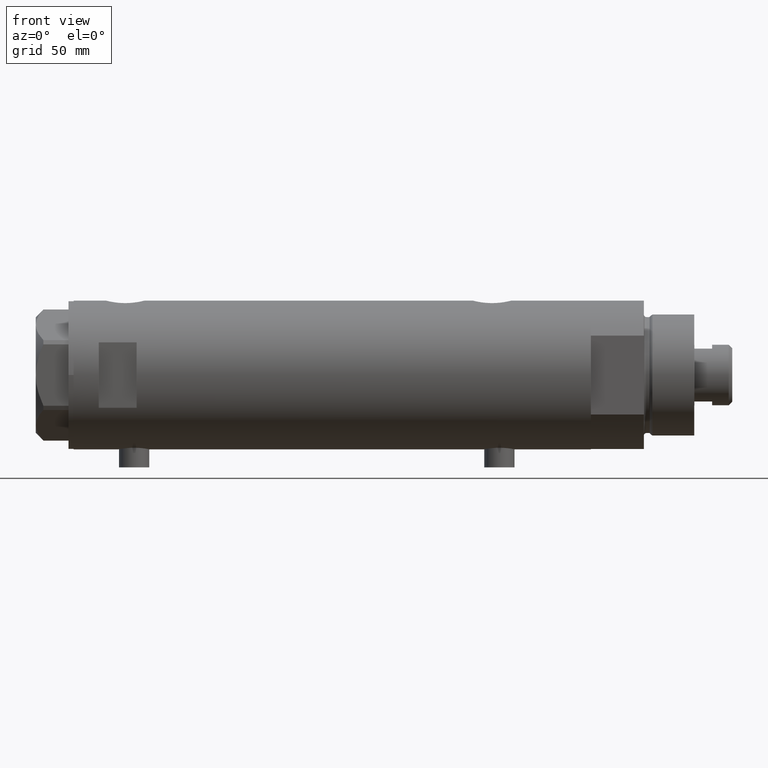
[diagram: clean part render]
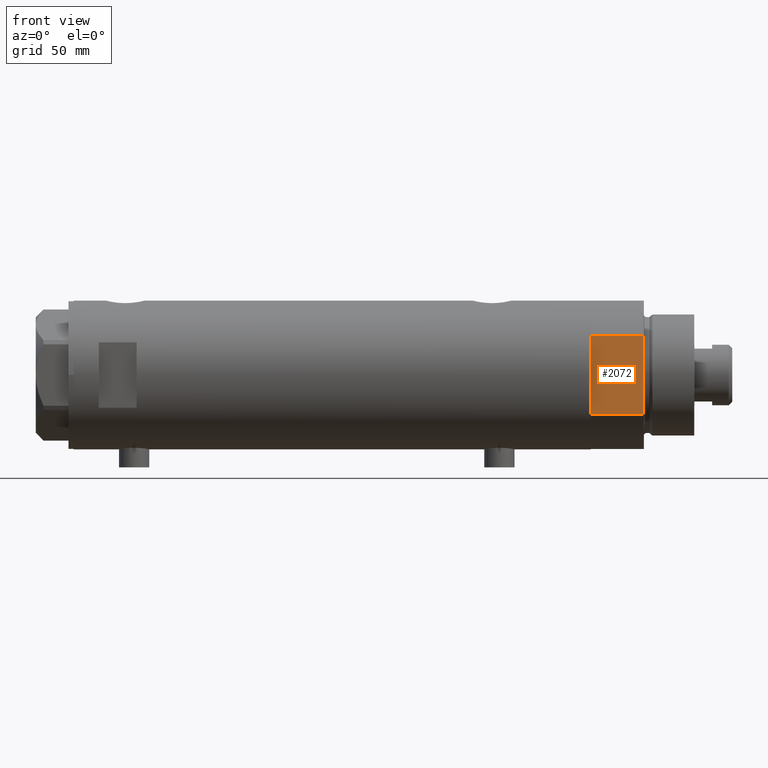
[diagram: same view with one face highlighted and labeled with its STEP entity id]
A machine part, front view. The second image highlights one B-rep face of the part: STEP entity #2072.
In plain terms, the highlighted planar face has unit normal (-0, 1, 0).
Its self-contained STEP definition (entity closure, byte-faithful):
#5 = LINE ( 'NONE', #31, #3335 ) ;
#31 = CARTESIAN_POINT ( 'NONE',  ( 15.66045976336583401, -25.00000000000000000, 0.000000000000000000 ) ) ;
#39 = EDGE_LOOP ( 'NONE', ( #3128, #1911, #4112, #3447, #3593, #2026 ) ) ;
#338 = CARTESIAN_POINT ( 'NONE',  ( -15.66045976336583045, -24.99999999999999645, 20.99999999999999645 ) ) ;
#539 = VECTOR ( 'NONE', #3044, 1000.000000000000000 ) ;
#599 = EDGE_CURVE ( 'NONE', #3852, #3407, #4146, .T. ) ;
#818 = CARTESIAN_POINT ( 'NONE',  ( -15.66045976336583401, -25.00000000000000000, 0.000000000000000000 ) ) ;
#821 = EDGE_CURVE ( 'NONE', #945, #3407, #4293, .T. ) ;
#945 = VERTEX_POINT ( 'NONE', #2179 ) ;
#963 = EDGE_CURVE ( 'NONE', #4337, #3852, #2157, .T. ) ;
#1159 = PLANE ( 'NONE',  #2625 ) ;
#1171 = LINE ( 'NONE', #818, #2171 ) ;
#1220 = EDGE_CURVE ( 'NONE', #2797, #4337, #1171, .T. ) ;
#1252 = CARTESIAN_POINT ( 'NONE',  ( 15.66045976336583401, -25.00000000000000000, 0.000000000000000000 ) ) ;
#1464 = EDGE_CURVE ( 'NONE', #4490, #945, #5, .T. ) ;
#1901 = DIRECTION ( 'NONE',  ( 0.000000000000000000, -0.000000000000000000, 1.000000000000000000 ) ) ;
#1911 = ORIENTED_EDGE ( 'NONE', *, *, #599, .F. ) ;
#1925 = VECTOR ( 'NONE', #3727, 1000.000000000000000 ) ;
#2026 = ORIENTED_EDGE ( 'NONE', *, *, #1464, .T. ) ;
#2072 = ADVANCED_FACE ( 'NONE', ( #3355 ), #1159, .F. ) ;
#2157 = LINE ( 'NONE', #2529, #4177 ) ;
#2171 = VECTOR ( 'NONE', #3024, 1000.000000000000000 ) ;
#2179 = CARTESIAN_POINT ( 'NONE',  ( 15.66045976336583045, -25.00000000000000000, 21.00000000000000355 ) ) ;
#2265 = DIRECTION ( 'NONE',  ( -0.000000000000000000, 1.000000000000000000, 0.000000000000000000 ) ) ;
#2529 = CARTESIAN_POINT ( 'NONE',  ( -15.66045976336583401, -25.00000000000000000, 0.000000000000000000 ) ) ;
#2575 = DIRECTION ( 'NONE',  ( -0.000000000000000000, -0.000000000000000000, 1.000000000000000000 ) ) ;
#2611 = CARTESIAN_POINT ( 'NONE',  ( -15.66045976336583401, -25.00000000000000000, 0.000000000000000000 ) ) ;
#2625 = AXIS2_PLACEMENT_3D ( 'NONE', #2611, #2265, #1901 ) ;
#2797 = VERTEX_POINT ( 'NONE', #3094 ) ;
#2916 = CARTESIAN_POINT ( 'NONE',  ( -15.66045976336582690, -25.00000000000000000, 0.000000000000000000 ) ) ;
#3024 = DIRECTION ( 'NONE',  ( -1.000000000000000000, -0.000000000000000000, -0.000000000000000000 ) ) ;
#3044 = DIRECTION ( 'NONE',  ( -1.000000000000000000, -0.000000000000000000, -0.000000000000000000 ) ) ;
#3046 = LINE ( 'NONE', #3454, #3186 ) ;
#3094 = CARTESIAN_POINT ( 'NONE',  ( 7.141428428542853091, -25.00000000000000000, 0.000000000000000000 ) ) ;
#3128 = ORIENTED_EDGE ( 'NONE', *, *, #821, .T. ) ;
#3186 = VECTOR ( 'NONE', #4559, 1000.000000000000000 ) ;
#3335 = VECTOR ( 'NONE', #2575, 1000.000000000000000 ) ;
#3355 = FACE_OUTER_BOUND ( 'NONE', #39, .T. ) ;
#3407 = VERTEX_POINT ( 'NONE', #338 ) ;
#3447 = ORIENTED_EDGE ( 'NONE', *, *, #1220, .F. ) ;
#3454 = CARTESIAN_POINT ( 'NONE',  ( -15.66045976336583401, -25.00000000000000000, 0.000000000000000000 ) ) ;
#3573 = DIRECTION ( 'NONE',  ( -1.000000000000000000, -0.000000000000000000, -0.000000000000000000 ) ) ;
#3593 = ORIENTED_EDGE ( 'NONE', *, *, #4245, .F. ) ;
#3727 = DIRECTION ( 'NONE',  ( -0.000000000000000000, -0.000000000000000000, 1.000000000000000000 ) ) ;
#3852 = VERTEX_POINT ( 'NONE', #2916 ) ;
#4074 = CARTESIAN_POINT ( 'NONE',  ( -7.141428428542853091, -25.00000000000000000, 0.000000000000000000 ) ) ;
#4112 = ORIENTED_EDGE ( 'NONE', *, *, #963, .F. ) ;
#4124 = CARTESIAN_POINT ( 'NONE',  ( -15.66045976336583401, -25.00000000000000000, 0.000000000000000000 ) ) ;
#4146 = LINE ( 'NONE', #4124, #1925 ) ;
#4177 = VECTOR ( 'NONE', #3573, 1000.000000000000000 ) ;
#4245 = EDGE_CURVE ( 'NONE', #4490, #2797, #3046, .T. ) ;
#4293 = LINE ( 'NONE', #4585, #539 ) ;
#4337 = VERTEX_POINT ( 'NONE', #4074 ) ;
#4490 = VERTEX_POINT ( 'NONE', #1252 ) ;
#4559 = DIRECTION ( 'NONE',  ( -1.000000000000000000, -0.000000000000000000, -0.000000000000000000 ) ) ;
#4585 = CARTESIAN_POINT ( 'NONE',  ( -15.66045976336583401, -25.00000000000000000, 21.00000000000000000 ) ) ;